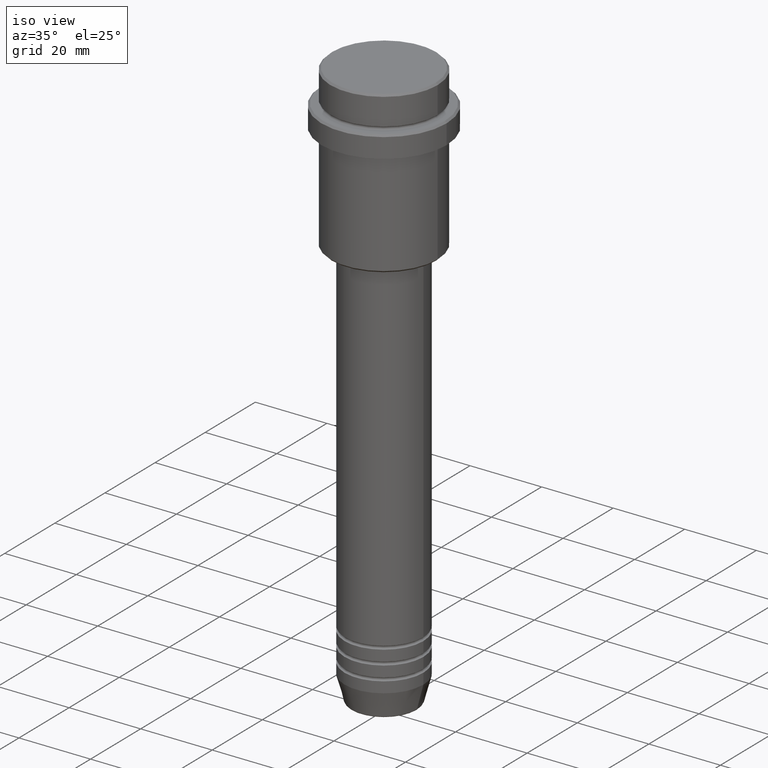
[diagram: clean part render]
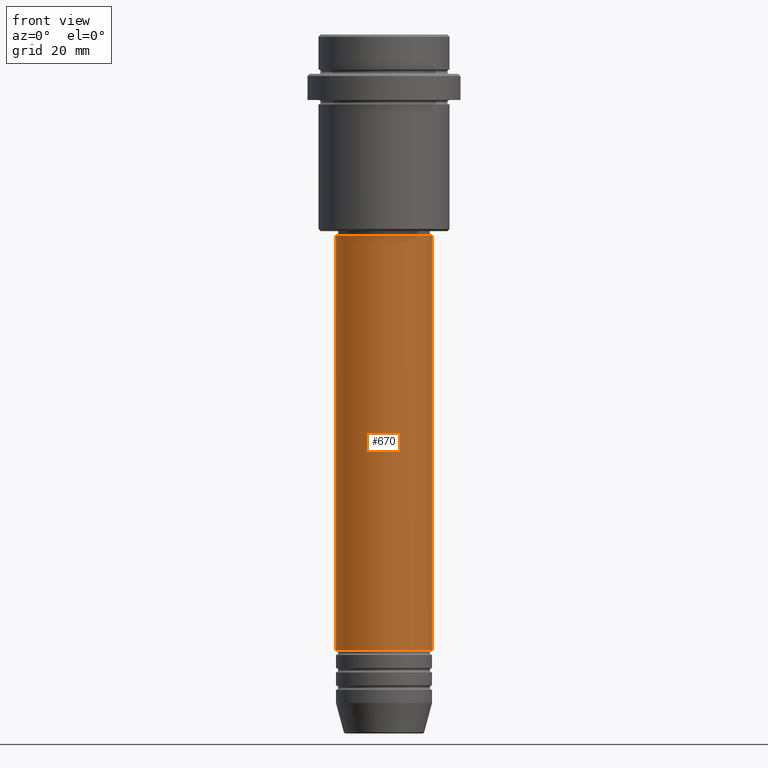
[diagram: tour spotlight — one face highlighted and labeled with its STEP entity id]
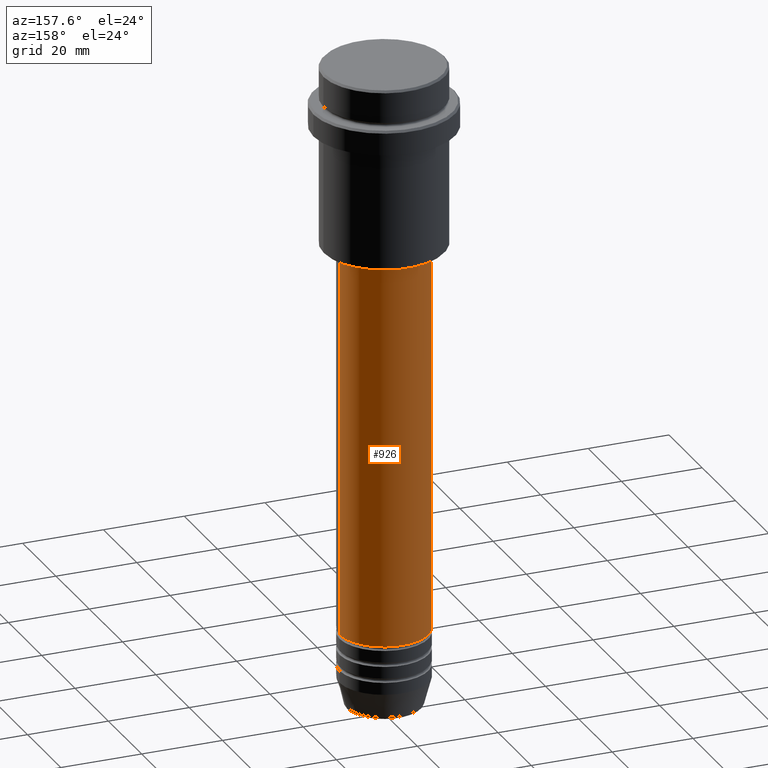
[diagram: tour spotlight — one face highlighted and labeled with its STEP entity id]
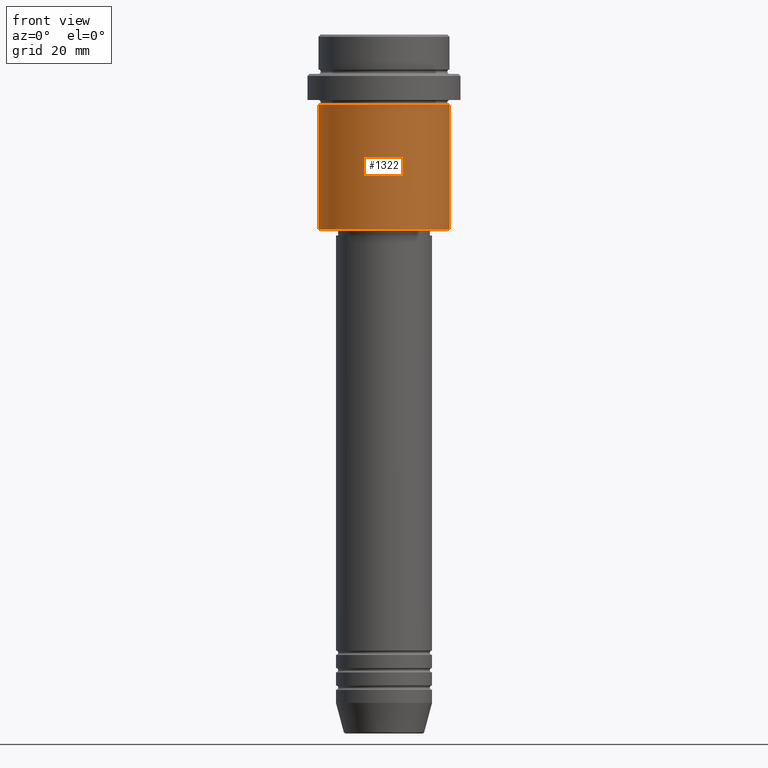
[diagram: tour spotlight — one face highlighted and labeled with its STEP entity id]
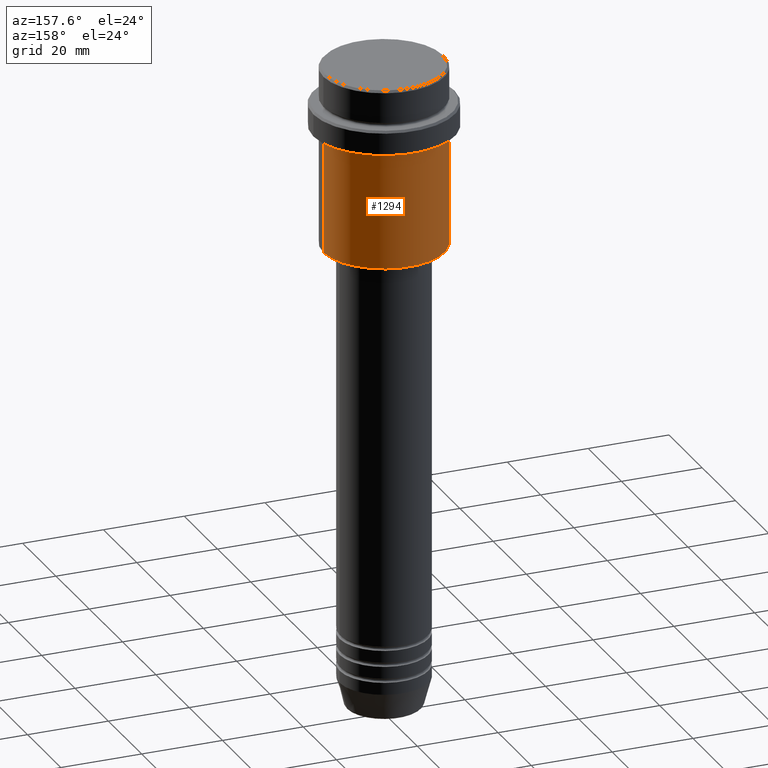
[diagram: tour spotlight — one face highlighted and labeled with its STEP entity id]
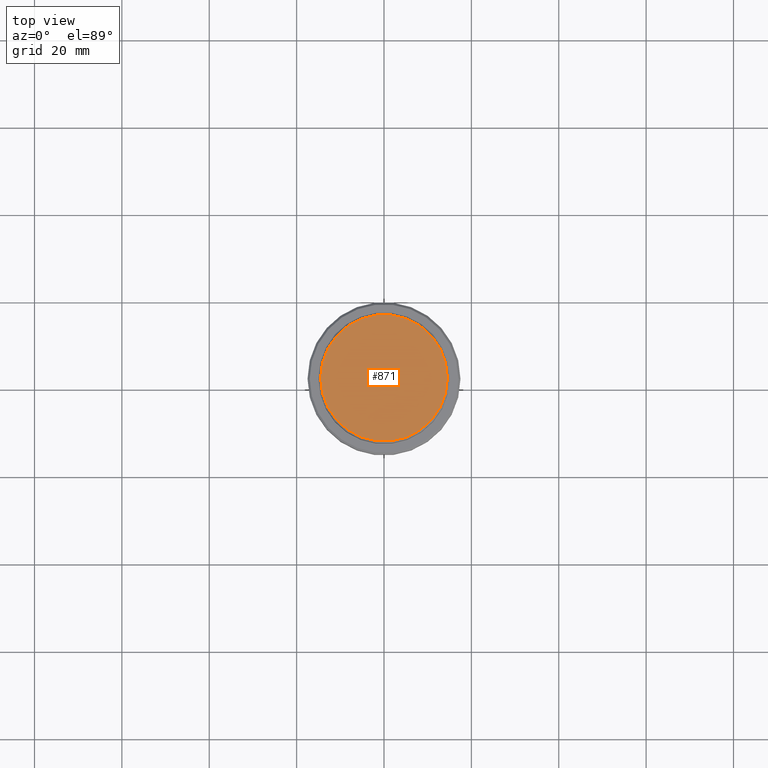
[diagram: tour spotlight — one face highlighted and labeled with its STEP entity id]
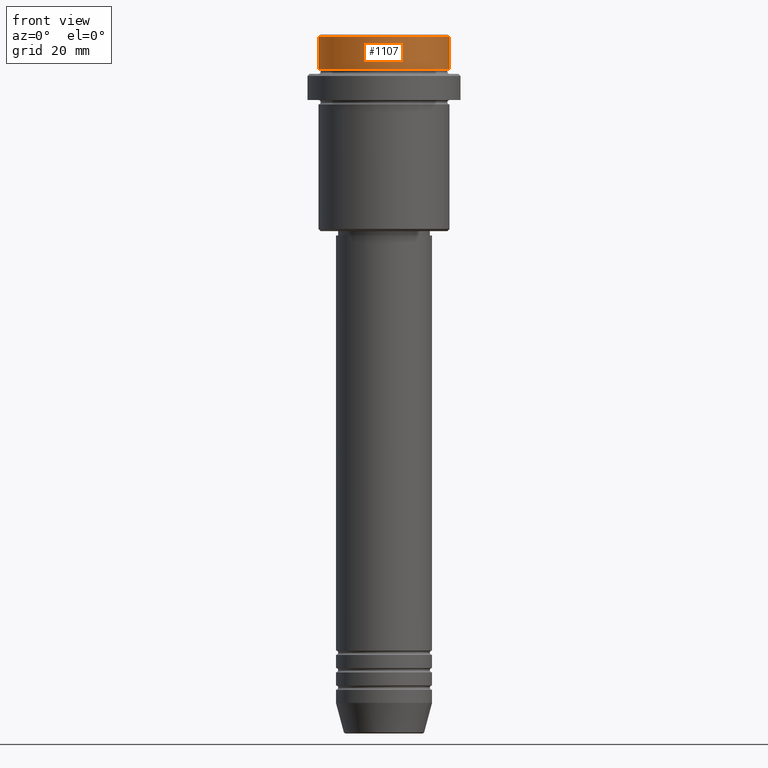
[diagram: tour spotlight — one face highlighted and labeled with its STEP entity id]
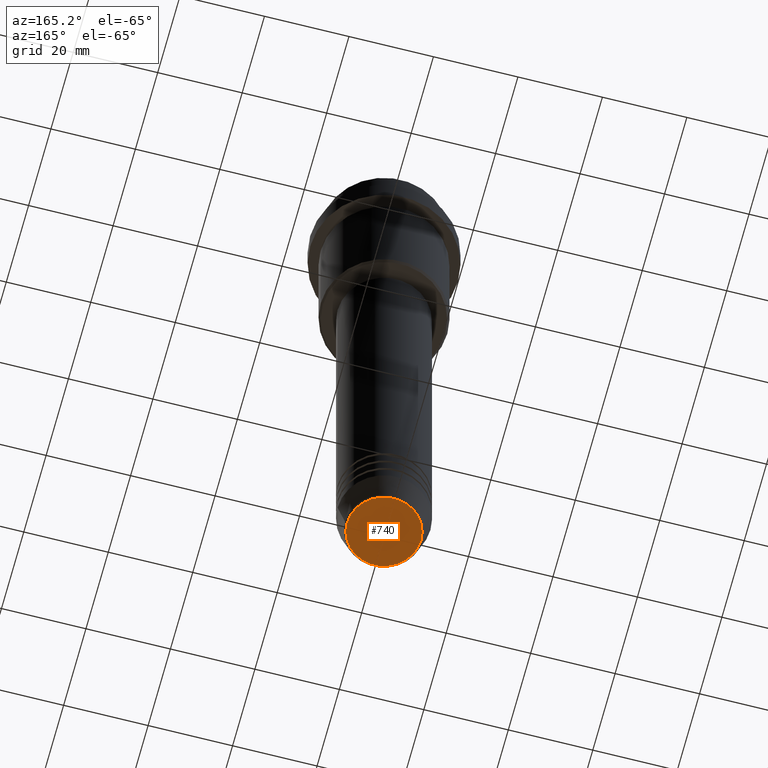
[diagram: tour spotlight — one face highlighted and labeled with its STEP entity id]
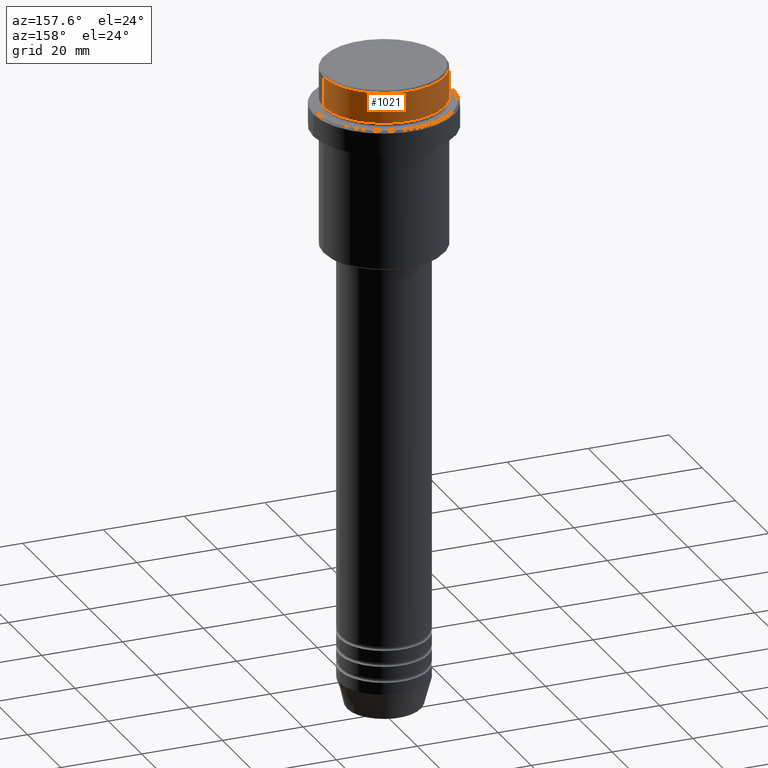
[diagram: tour spotlight — one face highlighted and labeled with its STEP entity id]
A machine part: a face-by-face anatomy tour. The part has 52 B-rep faces; the first image is the clean iso view, then the 8 largest visible faces are spotlighted one at a time (largest first), each with its STEP entity span.

Face 1 — front view, entity #670. In plain terms, the highlighted cylindrical surface (partial cylindrical patch) has radius 11 mm, axis along (-0, -0, 1).
Definition (entity closure, byte-faithful):
#3 = DIRECTION ( 'NONE',  ( 1.000000000000000000, 0.000000000000000000, 0.000000000000000000 ) ) ;
#79 = ORIENTED_EDGE ( 'NONE', *, *, #661, .F. ) ;
#113 = CYLINDRICAL_SURFACE ( 'NONE', #1369, 11.00000000000000000 ) ;
#117 = LINE ( 'NONE', #532, #1370 ) ;
#197 = DIRECTION ( 'NONE',  ( 1.000000000000000000, 0.000000000000000000, 0.000000000000000000 ) ) ;
#203 = LINE ( 'NONE', #968, #285 ) ;
#225 = CARTESIAN_POINT ( 'NONE',  ( 0.000000000000000000, 0.000000000000000000, 0.000000000000000000 ) ) ;
#252 = CARTESIAN_POINT ( 'NONE',  ( -11.00000000000000000, 1.347111479062088405E-15, -140.9999999999999147 ) ) ;
#285 = VECTOR ( 'NONE', #520, 1000.000000000000000 ) ;
#307 = DIRECTION ( 'NONE',  ( -0.000000000000000000, -0.000000000000000000, 1.000000000000000000 ) ) ;
#342 = EDGE_CURVE ( 'NONE', #1300, #778, #203, .T. ) ;
#378 = CIRCLE ( 'NONE', #1186, 11.00000000000000000 ) ;
#404 = ORIENTED_EDGE ( 'NONE', *, *, #442, .T. ) ;
#405 = CIRCLE ( 'NONE', #1211, 10.99999999999999822 ) ;
#413 = VERTEX_POINT ( 'NONE', #540 ) ;
#428 = EDGE_LOOP ( 'NONE', ( #1326, #404, #463, #79 ) ) ;
#442 = EDGE_CURVE ( 'NONE', #1300, #1151, #378, .T. ) ;
#463 = ORIENTED_EDGE ( 'NONE', *, *, #1251, .T. ) ;
#520 = DIRECTION ( 'NONE',  ( -0.000000000000000000, -0.000000000000000000, 1.000000000000000000 ) ) ;
#532 = CARTESIAN_POINT ( 'NONE',  ( 11.00000000000000000, 0.000000000000000000, 0.000000000000000000 ) ) ;
#540 = CARTESIAN_POINT ( 'NONE',  ( 10.99999999999999822, 0.000000000000000000, -45.99999999999998579 ) ) ;
#543 = DIRECTION ( 'NONE',  ( -0.000000000000000000, -0.000000000000000000, 1.000000000000000000 ) ) ;
#642 = DIRECTION ( 'NONE',  ( 1.000000000000000000, 0.000000000000000000, 0.000000000000000000 ) ) ;
#661 = EDGE_CURVE ( 'NONE', #778, #413, #405, .T. ) ;
#670 = ADVANCED_FACE ( 'NONE', ( #889 ), #113, .T. ) ;
#778 = VERTEX_POINT ( 'NONE', #827 ) ;
#827 = CARTESIAN_POINT ( 'NONE',  ( -10.99999999999999822, 1.347111479062088207E-15, -45.99999999999998579 ) ) ;
#864 = CARTESIAN_POINT ( 'NONE',  ( 0.000000000000000000, 0.000000000000000000, -45.99999999999998579 ) ) ;
#889 = FACE_OUTER_BOUND ( 'NONE', #428, .T. ) ;
#968 = CARTESIAN_POINT ( 'NONE',  ( -11.00000000000000000, 1.347111479062088405E-15, 0.000000000000000000 ) ) ;
#1095 = DIRECTION ( 'NONE',  ( -0.000000000000000000, -0.000000000000000000, 1.000000000000000000 ) ) ;
#1151 = VERTEX_POINT ( 'NONE', #1415 ) ;
#1186 = AXIS2_PLACEMENT_3D ( 'NONE', #1298, #307, #197 ) ;
#1211 = AXIS2_PLACEMENT_3D ( 'NONE', #864, #1329, #3 ) ;
#1251 = EDGE_CURVE ( 'NONE', #1151, #413, #117, .T. ) ;
#1298 = CARTESIAN_POINT ( 'NONE',  ( 0.000000000000000000, 0.000000000000000000, -140.9999999999999147 ) ) ;
#1300 = VERTEX_POINT ( 'NONE', #252 ) ;
#1326 = ORIENTED_EDGE ( 'NONE', *, *, #342, .F. ) ;
#1329 = DIRECTION ( 'NONE',  ( -0.000000000000000000, -0.000000000000000000, 1.000000000000000000 ) ) ;
#1369 = AXIS2_PLACEMENT_3D ( 'NONE', #225, #1095, #642 ) ;
#1370 = VECTOR ( 'NONE', #543, 1000.000000000000000 ) ;
#1415 = CARTESIAN_POINT ( 'NONE',  ( 11.00000000000000000, 0.000000000000000000, -140.9999999999999147 ) ) ;

Face 2 — auxiliary view, entity #926. In plain terms, the highlighted cylindrical surface (partial cylindrical patch) has radius 11 mm, axis along (-0, -0, 1).
Definition (entity closure, byte-faithful):
#92 = AXIS2_PLACEMENT_3D ( 'NONE', #803, #653, #554 ) ;
#115 = CARTESIAN_POINT ( 'NONE',  ( 0.000000000000000000, 0.000000000000000000, -140.9999999999999147 ) ) ;
#117 = LINE ( 'NONE', #532, #1370 ) ;
#174 = AXIS2_PLACEMENT_3D ( 'NONE', #331, #556, #866 ) ;
#178 = CYLINDRICAL_SURFACE ( 'NONE', #92, 11.00000000000000000 ) ;
#203 = LINE ( 'NONE', #968, #285 ) ;
#252 = CARTESIAN_POINT ( 'NONE',  ( -11.00000000000000000, 1.347111479062088405E-15, -140.9999999999999147 ) ) ;
#285 = VECTOR ( 'NONE', #520, 1000.000000000000000 ) ;
#288 = AXIS2_PLACEMENT_3D ( 'NONE', #115, #975, #548 ) ;
#331 = CARTESIAN_POINT ( 'NONE',  ( 0.000000000000000000, 0.000000000000000000, -45.99999999999998579 ) ) ;
#342 = EDGE_CURVE ( 'NONE', #1300, #778, #203, .T. ) ;
#410 = EDGE_CURVE ( 'NONE', #1151, #1300, #1390, .T. ) ;
#413 = VERTEX_POINT ( 'NONE', #540 ) ;
#481 = ORIENTED_EDGE ( 'NONE', *, *, #410, .T. ) ;
#496 = CIRCLE ( 'NONE', #174, 10.99999999999999822 ) ;
#520 = DIRECTION ( 'NONE',  ( -0.000000000000000000, -0.000000000000000000, 1.000000000000000000 ) ) ;
#532 = CARTESIAN_POINT ( 'NONE',  ( 11.00000000000000000, 0.000000000000000000, 0.000000000000000000 ) ) ;
#540 = CARTESIAN_POINT ( 'NONE',  ( 10.99999999999999822, 0.000000000000000000, -45.99999999999998579 ) ) ;
#543 = DIRECTION ( 'NONE',  ( -0.000000000000000000, -0.000000000000000000, 1.000000000000000000 ) ) ;
#548 = DIRECTION ( 'NONE',  ( 1.000000000000000000, 0.000000000000000000, 0.000000000000000000 ) ) ;
#554 = DIRECTION ( 'NONE',  ( 1.000000000000000000, 0.000000000000000000, 0.000000000000000000 ) ) ;
#556 = DIRECTION ( 'NONE',  ( -0.000000000000000000, -0.000000000000000000, 1.000000000000000000 ) ) ;
#653 = DIRECTION ( 'NONE',  ( -0.000000000000000000, -0.000000000000000000, 1.000000000000000000 ) ) ;
#755 = FACE_OUTER_BOUND ( 'NONE', #949, .T. ) ;
#778 = VERTEX_POINT ( 'NONE', #827 ) ;
#803 = CARTESIAN_POINT ( 'NONE',  ( 0.000000000000000000, 0.000000000000000000, 0.000000000000000000 ) ) ;
#827 = CARTESIAN_POINT ( 'NONE',  ( -10.99999999999999822, 1.347111479062088207E-15, -45.99999999999998579 ) ) ;
#866 = DIRECTION ( 'NONE',  ( 1.000000000000000000, 0.000000000000000000, 0.000000000000000000 ) ) ;
#926 = ADVANCED_FACE ( 'NONE', ( #755 ), #178, .T. ) ;
#949 = EDGE_LOOP ( 'NONE', ( #481, #1063, #1173, #1030 ) ) ;
#968 = CARTESIAN_POINT ( 'NONE',  ( -11.00000000000000000, 1.347111479062088405E-15, 0.000000000000000000 ) ) ;
#975 = DIRECTION ( 'NONE',  ( -0.000000000000000000, -0.000000000000000000, 1.000000000000000000 ) ) ;
#1030 = ORIENTED_EDGE ( 'NONE', *, *, #1251, .F. ) ;
#1063 = ORIENTED_EDGE ( 'NONE', *, *, #342, .T. ) ;
#1151 = VERTEX_POINT ( 'NONE', #1415 ) ;
#1172 = EDGE_CURVE ( 'NONE', #413, #778, #496, .T. ) ;
#1173 = ORIENTED_EDGE ( 'NONE', *, *, #1172, .F. ) ;
#1251 = EDGE_CURVE ( 'NONE', #1151, #413, #117, .T. ) ;
#1300 = VERTEX_POINT ( 'NONE', #252 ) ;
#1370 = VECTOR ( 'NONE', #543, 1000.000000000000000 ) ;
#1390 = CIRCLE ( 'NONE', #288, 11.00000000000000000 ) ;
#1415 = CARTESIAN_POINT ( 'NONE',  ( 11.00000000000000000, 0.000000000000000000, -140.9999999999999147 ) ) ;

Face 3 — front view, entity #1322. In plain terms, the highlighted cylindrical surface (partial cylindrical patch) has radius 15 mm, axis along (-0, -0, 1).
Definition (entity closure, byte-faithful):
#29 = EDGE_CURVE ( 'NONE', #340, #1122, #687, .T. ) ;
#42 = ORIENTED_EDGE ( 'NONE', *, *, #1283, .T. ) ;
#45 = VECTOR ( 'NONE', #574, 1000.000000000000000 ) ;
#69 = CARTESIAN_POINT ( 'NONE',  ( 15.00000000000000178, 0.000000000000000000, -16.00000000000000000 ) ) ;
#100 = ORIENTED_EDGE ( 'NONE', *, *, #29, .F. ) ;
#135 = CARTESIAN_POINT ( 'NONE',  ( 0.000000000000000000, 0.000000000000000000, 0.000000000000000000 ) ) ;
#145 = DIRECTION ( 'NONE',  ( -0.000000000000000000, -0.000000000000000000, 1.000000000000000000 ) ) ;
#198 = AXIS2_PLACEMENT_3D ( 'NONE', #934, #1373, #828 ) ;
#245 = CARTESIAN_POINT ( 'NONE',  ( -15.00000000000000000, 1.836970198721029589E-15, 0.000000000000000000 ) ) ;
#247 = LINE ( 'NONE', #1353, #45 ) ;
#287 = ORIENTED_EDGE ( 'NONE', *, *, #1110, .T. ) ;
#333 = DIRECTION ( 'NONE',  ( 1.000000000000000000, 0.000000000000000000, 0.000000000000000000 ) ) ;
#340 = VERTEX_POINT ( 'NONE', #1196 ) ;
#444 = CARTESIAN_POINT ( 'NONE',  ( -15.00000000000000355, 1.836970198721029983E-15, -16.00000000000000000 ) ) ;
#453 = EDGE_LOOP ( 'NONE', ( #100, #287, #42, #665 ) ) ;
#466 = AXIS2_PLACEMENT_3D ( 'NONE', #494, #973, #333 ) ;
#494 = CARTESIAN_POINT ( 'NONE',  ( 0.000000000000000000, 0.000000000000000000, -16.00000000000000000 ) ) ;
#533 = VERTEX_POINT ( 'NONE', #938 ) ;
#560 = EDGE_CURVE ( 'NONE', #1122, #1402, #1305, .T. ) ;
#574 = DIRECTION ( 'NONE',  ( -0.000000000000000000, -0.000000000000000000, 1.000000000000000000 ) ) ;
#648 = VECTOR ( 'NONE', #919, 1000.000000000000000 ) ;
#665 = ORIENTED_EDGE ( 'NONE', *, *, #560, .F. ) ;
#687 = LINE ( 'NONE', #245, #648 ) ;
#776 = CIRCLE ( 'NONE', #198, 15.00000000000000000 ) ;
#828 = DIRECTION ( 'NONE',  ( -1.000000000000000000, 0.000000000000000000, 0.000000000000000000 ) ) ;
#919 = DIRECTION ( 'NONE',  ( -0.000000000000000000, -0.000000000000000000, 1.000000000000000000 ) ) ;
#934 = CARTESIAN_POINT ( 'NONE',  ( 0.000000000000000000, 0.000000000000000000, -44.49999999999994316 ) ) ;
#938 = CARTESIAN_POINT ( 'NONE',  ( 15.00000000000000000, 0.000000000000000000, -44.49999999999994316 ) ) ;
#973 = DIRECTION ( 'NONE',  ( -0.000000000000000000, -0.000000000000000000, 1.000000000000000000 ) ) ;
#1018 = FACE_OUTER_BOUND ( 'NONE', #453, .T. ) ;
#1045 = AXIS2_PLACEMENT_3D ( 'NONE', #135, #145, #1343 ) ;
#1110 = EDGE_CURVE ( 'NONE', #340, #533, #776, .T. ) ;
#1122 = VERTEX_POINT ( 'NONE', #444 ) ;
#1139 = CYLINDRICAL_SURFACE ( 'NONE', #1045, 15.00000000000000000 ) ;
#1196 = CARTESIAN_POINT ( 'NONE',  ( -15.00000000000000000, 1.836970198721029589E-15, -44.49999999999994316 ) ) ;
#1283 = EDGE_CURVE ( 'NONE', #533, #1402, #247, .T. ) ;
#1305 = CIRCLE ( 'NONE', #466, 15.00000000000000178 ) ;
#1322 = ADVANCED_FACE ( 'NONE', ( #1018 ), #1139, .T. ) ;
#1343 = DIRECTION ( 'NONE',  ( 1.000000000000000000, 0.000000000000000000, 0.000000000000000000 ) ) ;
#1353 = CARTESIAN_POINT ( 'NONE',  ( 15.00000000000000000, 0.000000000000000000, 0.000000000000000000 ) ) ;
#1373 = DIRECTION ( 'NONE',  ( -0.000000000000000000, -0.000000000000000000, 1.000000000000000000 ) ) ;
#1402 = VERTEX_POINT ( 'NONE', #69 ) ;

Face 4 — auxiliary view, entity #1294. In plain terms, the highlighted cylindrical surface (partial cylindrical patch) has radius 15 mm, axis along (-0, -0, 1).
Definition (entity closure, byte-faithful):
#14 = ORIENTED_EDGE ( 'NONE', *, *, #29, .T. ) ;
#29 = EDGE_CURVE ( 'NONE', #340, #1122, #687, .T. ) ;
#45 = VECTOR ( 'NONE', #574, 1000.000000000000000 ) ;
#69 = CARTESIAN_POINT ( 'NONE',  ( 15.00000000000000178, 0.000000000000000000, -16.00000000000000000 ) ) ;
#96 = ORIENTED_EDGE ( 'NONE', *, *, #188, .F. ) ;
#154 = FACE_OUTER_BOUND ( 'NONE', #575, .T. ) ;
#158 = EDGE_CURVE ( 'NONE', #533, #340, #402, .T. ) ;
#164 = CARTESIAN_POINT ( 'NONE',  ( 0.000000000000000000, 0.000000000000000000, -44.49999999999994316 ) ) ;
#188 = EDGE_CURVE ( 'NONE', #1402, #1122, #1304, .T. ) ;
#245 = CARTESIAN_POINT ( 'NONE',  ( -15.00000000000000000, 1.836970198721029589E-15, 0.000000000000000000 ) ) ;
#247 = LINE ( 'NONE', #1353, #45 ) ;
#336 = AXIS2_PLACEMENT_3D ( 'NONE', #164, #728, #382 ) ;
#340 = VERTEX_POINT ( 'NONE', #1196 ) ;
#363 = CYLINDRICAL_SURFACE ( 'NONE', #1166, 15.00000000000000000 ) ;
#382 = DIRECTION ( 'NONE',  ( -1.000000000000000000, 0.000000000000000000, 0.000000000000000000 ) ) ;
#402 = CIRCLE ( 'NONE', #336, 15.00000000000000000 ) ;
#444 = CARTESIAN_POINT ( 'NONE',  ( -15.00000000000000355, 1.836970198721029983E-15, -16.00000000000000000 ) ) ;
#456 = DIRECTION ( 'NONE',  ( 1.000000000000000000, 0.000000000000000000, 0.000000000000000000 ) ) ;
#533 = VERTEX_POINT ( 'NONE', #938 ) ;
#574 = DIRECTION ( 'NONE',  ( -0.000000000000000000, -0.000000000000000000, 1.000000000000000000 ) ) ;
#575 = EDGE_LOOP ( 'NONE', ( #1276, #14, #96, #738 ) ) ;
#586 = DIRECTION ( 'NONE',  ( -0.000000000000000000, -0.000000000000000000, 1.000000000000000000 ) ) ;
#648 = VECTOR ( 'NONE', #919, 1000.000000000000000 ) ;
#687 = LINE ( 'NONE', #245, #648 ) ;
#693 = AXIS2_PLACEMENT_3D ( 'NONE', #1361, #924, #952 ) ;
#728 = DIRECTION ( 'NONE',  ( -0.000000000000000000, -0.000000000000000000, 1.000000000000000000 ) ) ;
#738 = ORIENTED_EDGE ( 'NONE', *, *, #1283, .F. ) ;
#805 = CARTESIAN_POINT ( 'NONE',  ( 0.000000000000000000, 0.000000000000000000, 0.000000000000000000 ) ) ;
#919 = DIRECTION ( 'NONE',  ( -0.000000000000000000, -0.000000000000000000, 1.000000000000000000 ) ) ;
#924 = DIRECTION ( 'NONE',  ( -0.000000000000000000, -0.000000000000000000, 1.000000000000000000 ) ) ;
#938 = CARTESIAN_POINT ( 'NONE',  ( 15.00000000000000000, 0.000000000000000000, -44.49999999999994316 ) ) ;
#952 = DIRECTION ( 'NONE',  ( 1.000000000000000000, 0.000000000000000000, 0.000000000000000000 ) ) ;
#1122 = VERTEX_POINT ( 'NONE', #444 ) ;
#1166 = AXIS2_PLACEMENT_3D ( 'NONE', #805, #586, #456 ) ;
#1196 = CARTESIAN_POINT ( 'NONE',  ( -15.00000000000000000, 1.836970198721029589E-15, -44.49999999999994316 ) ) ;
#1276 = ORIENTED_EDGE ( 'NONE', *, *, #158, .T. ) ;
#1283 = EDGE_CURVE ( 'NONE', #533, #1402, #247, .T. ) ;
#1294 = ADVANCED_FACE ( 'NONE', ( #154 ), #363, .T. ) ;
#1304 = CIRCLE ( 'NONE', #693, 15.00000000000000178 ) ;
#1353 = CARTESIAN_POINT ( 'NONE',  ( 15.00000000000000000, 0.000000000000000000, 0.000000000000000000 ) ) ;
#1361 = CARTESIAN_POINT ( 'NONE',  ( 0.000000000000000000, 0.000000000000000000, -16.00000000000000000 ) ) ;
#1402 = VERTEX_POINT ( 'NONE', #69 ) ;

Face 5 — top view, entity #871. In plain terms, the highlighted planar face has unit normal (0, -0, 1).
Definition (entity closure, byte-faithful):
#4 = ORIENTED_EDGE ( 'NONE', *, *, #553, .T. ) ;
#50 = EDGE_LOOP ( 'NONE', ( #888, #4 ) ) ;
#124 = FACE_OUTER_BOUND ( 'NONE', #50, .T. ) ;
#130 = CIRCLE ( 'NONE', #316, 14.49999999999998401 ) ;
#261 = AXIS2_PLACEMENT_3D ( 'NONE', #1295, #305, #1143 ) ;
#305 = DIRECTION ( 'NONE',  ( -0.000000000000000000, -0.000000000000000000, 1.000000000000000000 ) ) ;
#316 = AXIS2_PLACEMENT_3D ( 'NONE', #999, #1239, #666 ) ;
#479 = DIRECTION ( 'NONE',  ( 0.000000000000000000, -0.000000000000000000, 1.000000000000000000 ) ) ;
#495 = AXIS2_PLACEMENT_3D ( 'NONE', #689, #479, #897 ) ;
#553 = EDGE_CURVE ( 'NONE', #1340, #1079, #891, .T. ) ;
#579 = CARTESIAN_POINT ( 'NONE',  ( 14.49999999999998401, 1.806354028742345013E-15, 0.000000000000000000 ) ) ;
#599 = EDGE_CURVE ( 'NONE', #1079, #1340, #130, .T. ) ;
#666 = DIRECTION ( 'NONE',  ( 1.000000000000000000, 0.000000000000000000, 0.000000000000000000 ) ) ;
#689 = CARTESIAN_POINT ( 'NONE',  ( 0.000000000000000000, 0.000000000000000000, 0.000000000000000000 ) ) ;
#871 = ADVANCED_FACE ( 'NONE', ( #124 ), #1354, .T. ) ;
#888 = ORIENTED_EDGE ( 'NONE', *, *, #599, .T. ) ;
#891 = CIRCLE ( 'NONE', #261, 14.49999999999998401 ) ;
#897 = DIRECTION ( 'NONE',  ( 1.000000000000000000, 0.000000000000000000, 0.000000000000000000 ) ) ;
#999 = CARTESIAN_POINT ( 'NONE',  ( 0.000000000000000000, 0.000000000000000000, 0.000000000000000000 ) ) ;
#1079 = VERTEX_POINT ( 'NONE', #1165 ) ;
#1143 = DIRECTION ( 'NONE',  ( 1.000000000000000000, 0.000000000000000000, 0.000000000000000000 ) ) ;
#1165 = CARTESIAN_POINT ( 'NONE',  ( -14.49999999999998401, 0.000000000000000000, 0.000000000000000000 ) ) ;
#1239 = DIRECTION ( 'NONE',  ( -0.000000000000000000, -0.000000000000000000, 1.000000000000000000 ) ) ;
#1295 = CARTESIAN_POINT ( 'NONE',  ( 0.000000000000000000, 0.000000000000000000, 0.000000000000000000 ) ) ;
#1340 = VERTEX_POINT ( 'NONE', #579 ) ;
#1354 = PLANE ( 'NONE',  #495 ) ;

Face 6 — front view, entity #1107. In plain terms, the highlighted cylindrical surface (partial cylindrical patch) has radius 15 mm, axis along (-0, -0, 1).
Definition (entity closure, byte-faithful):
#56 = DIRECTION ( 'NONE',  ( 0.000000000000000000, 0.000000000000000000, -1.000000000000000000 ) ) ;
#61 = CARTESIAN_POINT ( 'NONE',  ( 15.00000000000000000, 0.000000000000000000, -0.4999999999999970024 ) ) ;
#63 = LINE ( 'NONE', #326, #1003 ) ;
#125 = EDGE_CURVE ( 'NONE', #626, #927, #559, .T. ) ;
#127 = DIRECTION ( 'NONE',  ( 1.000000000000000000, 0.000000000000000000, 0.000000000000000000 ) ) ;
#160 = CYLINDRICAL_SURFACE ( 'NONE', #1072, 15.00000000000000000 ) ;
#202 = CARTESIAN_POINT ( 'NONE',  ( 15.00000000000000000, 0.000000000000000000, 0.000000000000000000 ) ) ;
#296 = ORIENTED_EDGE ( 'NONE', *, *, #824, .T. ) ;
#302 = DIRECTION ( 'NONE',  ( -0.000000000000000000, -0.000000000000000000, 1.000000000000000000 ) ) ;
#326 = CARTESIAN_POINT ( 'NONE',  ( -15.00000000000000000, 1.836970198721029589E-15, 0.000000000000000000 ) ) ;
#357 = VECTOR ( 'NONE', #811, 1000.000000000000000 ) ;
#397 = LINE ( 'NONE', #202, #357 ) ;
#430 = AXIS2_PLACEMENT_3D ( 'NONE', #451, #671, #127 ) ;
#451 = CARTESIAN_POINT ( 'NONE',  ( 0.000000000000000000, 0.000000000000000000, -7.999999999999998224 ) ) ;
#539 = AXIS2_PLACEMENT_3D ( 'NONE', #1253, #56, #1036 ) ;
#559 = CIRCLE ( 'NONE', #430, 15.00000000000000000 ) ;
#624 = ORIENTED_EDGE ( 'NONE', *, *, #810, .F. ) ;
#626 = VERTEX_POINT ( 'NONE', #1405 ) ;
#630 = EDGE_CURVE ( 'NONE', #927, #1009, #397, .T. ) ;
#671 = DIRECTION ( 'NONE',  ( -0.000000000000000000, -0.000000000000000000, 1.000000000000000000 ) ) ;
#764 = DIRECTION ( 'NONE',  ( -0.000000000000000000, -0.000000000000000000, 1.000000000000000000 ) ) ;
#775 = CIRCLE ( 'NONE', #539, 15.00000000000000000 ) ;
#785 = CARTESIAN_POINT ( 'NONE',  ( 15.00000000000000000, 0.000000000000000000, -7.999999999999998224 ) ) ;
#810 = EDGE_CURVE ( 'NONE', #626, #1307, #63, .T. ) ;
#811 = DIRECTION ( 'NONE',  ( -0.000000000000000000, -0.000000000000000000, 1.000000000000000000 ) ) ;
#824 = EDGE_CURVE ( 'NONE', #1009, #1307, #775, .T. ) ;
#851 = FACE_OUTER_BOUND ( 'NONE', #988, .T. ) ;
#927 = VERTEX_POINT ( 'NONE', #785 ) ;
#988 = EDGE_LOOP ( 'NONE', ( #624, #1268, #1225, #296 ) ) ;
#1003 = VECTOR ( 'NONE', #764, 1000.000000000000000 ) ;
#1009 = VERTEX_POINT ( 'NONE', #61 ) ;
#1011 = CARTESIAN_POINT ( 'NONE',  ( -15.00000000000000000, 1.836970198721029589E-15, -0.4999999999999970024 ) ) ;
#1036 = DIRECTION ( 'NONE',  ( 1.000000000000000000, 0.000000000000000000, 0.000000000000000000 ) ) ;
#1072 = AXIS2_PLACEMENT_3D ( 'NONE', #1292, #302, #1149 ) ;
#1107 = ADVANCED_FACE ( 'NONE', ( #851 ), #160, .T. ) ;
#1149 = DIRECTION ( 'NONE',  ( 1.000000000000000000, 0.000000000000000000, 0.000000000000000000 ) ) ;
#1225 = ORIENTED_EDGE ( 'NONE', *, *, #630, .T. ) ;
#1253 = CARTESIAN_POINT ( 'NONE',  ( 0.000000000000000000, 0.000000000000000000, -0.4999999999999970024 ) ) ;
#1268 = ORIENTED_EDGE ( 'NONE', *, *, #125, .T. ) ;
#1292 = CARTESIAN_POINT ( 'NONE',  ( 0.000000000000000000, 0.000000000000000000, 0.000000000000000000 ) ) ;
#1307 = VERTEX_POINT ( 'NONE', #1011 ) ;
#1405 = CARTESIAN_POINT ( 'NONE',  ( -15.00000000000000000, 1.836970198721029589E-15, -7.999999999999998224 ) ) ;

Face 7 — auxiliary view, entity #740. In plain terms, the highlighted planar face has unit normal (0, -0, 1).
Definition (entity closure, byte-faithful):
#23 = ORIENTED_EDGE ( 'NONE', *, *, #90, .T. ) ;
#90 = EDGE_CURVE ( 'NONE', #332, #1221, #1278, .T. ) ;
#93 = CARTESIAN_POINT ( 'NONE',  ( -8.740692158992663607, 1.099999016768740442E-15, -159.9999999999999716 ) ) ;
#167 = PLANE ( 'NONE',  #722 ) ;
#301 = DIRECTION ( 'NONE',  ( 1.000000000000000000, 0.000000000000000000, 0.000000000000000000 ) ) ;
#332 = VERTEX_POINT ( 'NONE', #93 ) ;
#348 = CARTESIAN_POINT ( 'NONE',  ( 0.000000000000000000, 0.000000000000000000, -159.9999999999999716 ) ) ;
#368 = DIRECTION ( 'NONE',  ( 0.000000000000000000, 0.000000000000000000, -1.000000000000000000 ) ) ;
#555 = DIRECTION ( 'NONE',  ( 1.000000000000000000, 0.000000000000000000, 0.000000000000000000 ) ) ;
#587 = FACE_OUTER_BOUND ( 'NONE', #1315, .T. ) ;
#597 = DIRECTION ( 'NONE',  ( 0.000000000000000000, -0.000000000000000000, 1.000000000000000000 ) ) ;
#605 = DIRECTION ( 'NONE',  ( 1.000000000000000000, 0.000000000000000000, 0.000000000000000000 ) ) ;
#718 = CARTESIAN_POINT ( 'NONE',  ( 0.000000000000000000, 0.000000000000000000, -159.9999999999999716 ) ) ;
#722 = AXIS2_PLACEMENT_3D ( 'NONE', #718, #597, #301 ) ;
#740 = ADVANCED_FACE ( 'NONE', ( #587 ), #167, .F. ) ;
#745 = AXIS2_PLACEMENT_3D ( 'NONE', #348, #368, #555 ) ;
#798 = ORIENTED_EDGE ( 'NONE', *, *, #969, .T. ) ;
#969 = EDGE_CURVE ( 'NONE', #1221, #332, #1213, .T. ) ;
#1163 = CARTESIAN_POINT ( 'NONE',  ( 0.000000000000000000, 0.000000000000000000, -159.9999999999999716 ) ) ;
#1209 = CARTESIAN_POINT ( 'NONE',  ( 8.740692158992663607, 0.000000000000000000, -159.9999999999999716 ) ) ;
#1213 = CIRCLE ( 'NONE', #1350, 8.740692158992663607 ) ;
#1221 = VERTEX_POINT ( 'NONE', #1209 ) ;
#1278 = CIRCLE ( 'NONE', #745, 8.740692158992663607 ) ;
#1285 = DIRECTION ( 'NONE',  ( 0.000000000000000000, 0.000000000000000000, -1.000000000000000000 ) ) ;
#1315 = EDGE_LOOP ( 'NONE', ( #798, #23 ) ) ;
#1350 = AXIS2_PLACEMENT_3D ( 'NONE', #1163, #1285, #605 ) ;

Face 8 — auxiliary view, entity #1021. In plain terms, the highlighted cylindrical surface (partial cylindrical patch) has radius 15 mm, axis along (-0, -0, 1).
Definition (entity closure, byte-faithful):
#61 = CARTESIAN_POINT ( 'NONE',  ( 15.00000000000000000, 0.000000000000000000, -0.4999999999999970024 ) ) ;
#62 = ORIENTED_EDGE ( 'NONE', *, *, #810, .T. ) ;
#63 = LINE ( 'NONE', #326, #1003 ) ;
#83 = CARTESIAN_POINT ( 'NONE',  ( 0.000000000000000000, 0.000000000000000000, -0.4999999999999970024 ) ) ;
#190 = DIRECTION ( 'NONE',  ( 1.000000000000000000, 0.000000000000000000, 0.000000000000000000 ) ) ;
#202 = CARTESIAN_POINT ( 'NONE',  ( 15.00000000000000000, 0.000000000000000000, 0.000000000000000000 ) ) ;
#244 = CIRCLE ( 'NONE', #819, 15.00000000000000000 ) ;
#248 = EDGE_LOOP ( 'NONE', ( #1156, #62, #360, #1097 ) ) ;
#326 = CARTESIAN_POINT ( 'NONE',  ( -15.00000000000000000, 1.836970198721029589E-15, 0.000000000000000000 ) ) ;
#357 = VECTOR ( 'NONE', #811, 1000.000000000000000 ) ;
#360 = ORIENTED_EDGE ( 'NONE', *, *, #1085, .T. ) ;
#397 = LINE ( 'NONE', #202, #357 ) ;
#513 = DIRECTION ( 'NONE',  ( 0.000000000000000000, 0.000000000000000000, -1.000000000000000000 ) ) ;
#626 = VERTEX_POINT ( 'NONE', #1405 ) ;
#630 = EDGE_CURVE ( 'NONE', #927, #1009, #397, .T. ) ;
#703 = CYLINDRICAL_SURFACE ( 'NONE', #1308, 15.00000000000000000 ) ;
#764 = DIRECTION ( 'NONE',  ( -0.000000000000000000, -0.000000000000000000, 1.000000000000000000 ) ) ;
#769 = CARTESIAN_POINT ( 'NONE',  ( 0.000000000000000000, 0.000000000000000000, -7.999999999999998224 ) ) ;
#785 = CARTESIAN_POINT ( 'NONE',  ( 15.00000000000000000, 0.000000000000000000, -7.999999999999998224 ) ) ;
#810 = EDGE_CURVE ( 'NONE', #626, #1307, #63, .T. ) ;
#811 = DIRECTION ( 'NONE',  ( -0.000000000000000000, -0.000000000000000000, 1.000000000000000000 ) ) ;
#819 = AXIS2_PLACEMENT_3D ( 'NONE', #83, #513, #1396 ) ;
#846 = CIRCLE ( 'NONE', #1004, 15.00000000000000000 ) ;
#927 = VERTEX_POINT ( 'NONE', #785 ) ;
#955 = DIRECTION ( 'NONE',  ( -0.000000000000000000, -0.000000000000000000, 1.000000000000000000 ) ) ;
#996 = DIRECTION ( 'NONE',  ( -0.000000000000000000, -0.000000000000000000, 1.000000000000000000 ) ) ;
#1003 = VECTOR ( 'NONE', #764, 1000.000000000000000 ) ;
#1004 = AXIS2_PLACEMENT_3D ( 'NONE', #769, #996, #1408 ) ;
#1009 = VERTEX_POINT ( 'NONE', #61 ) ;
#1011 = CARTESIAN_POINT ( 'NONE',  ( -15.00000000000000000, 1.836970198721029589E-15, -0.4999999999999970024 ) ) ;
#1021 = ADVANCED_FACE ( 'NONE', ( #1384 ), #703, .T. ) ;
#1085 = EDGE_CURVE ( 'NONE', #1307, #1009, #244, .T. ) ;
#1097 = ORIENTED_EDGE ( 'NONE', *, *, #630, .F. ) ;
#1156 = ORIENTED_EDGE ( 'NONE', *, *, #1222, .T. ) ;
#1222 = EDGE_CURVE ( 'NONE', #927, #626, #846, .T. ) ;
#1274 = CARTESIAN_POINT ( 'NONE',  ( 0.000000000000000000, 0.000000000000000000, 0.000000000000000000 ) ) ;
#1307 = VERTEX_POINT ( 'NONE', #1011 ) ;
#1308 = AXIS2_PLACEMENT_3D ( 'NONE', #1274, #955, #190 ) ;
#1384 = FACE_OUTER_BOUND ( 'NONE', #248, .T. ) ;
#1396 = DIRECTION ( 'NONE',  ( 1.000000000000000000, 0.000000000000000000, 0.000000000000000000 ) ) ;
#1405 = CARTESIAN_POINT ( 'NONE',  ( -15.00000000000000000, 1.836970198721029589E-15, -7.999999999999998224 ) ) ;
#1408 = DIRECTION ( 'NONE',  ( 1.000000000000000000, 0.000000000000000000, 0.000000000000000000 ) ) ;